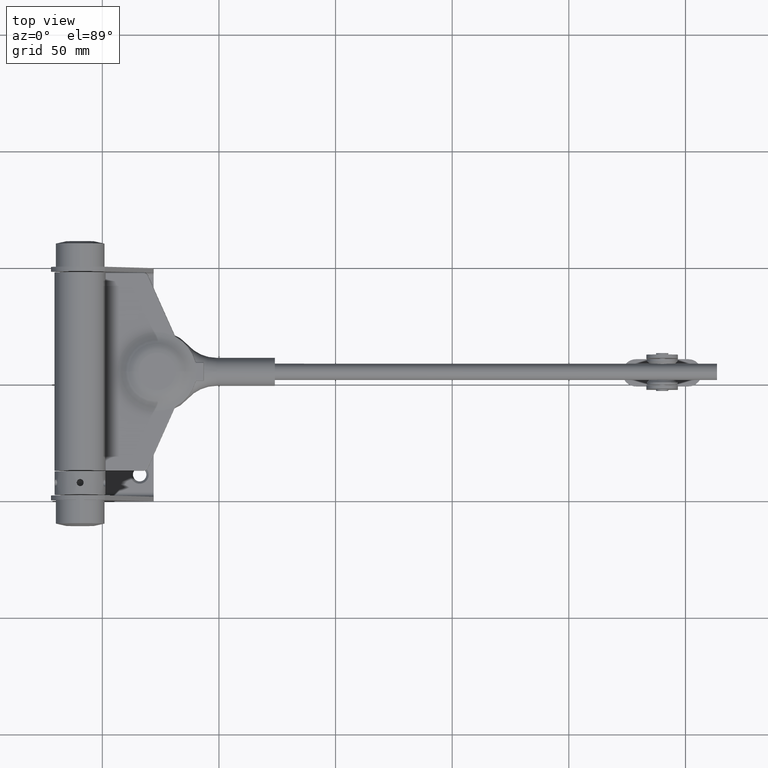
[diagram: clean part render]
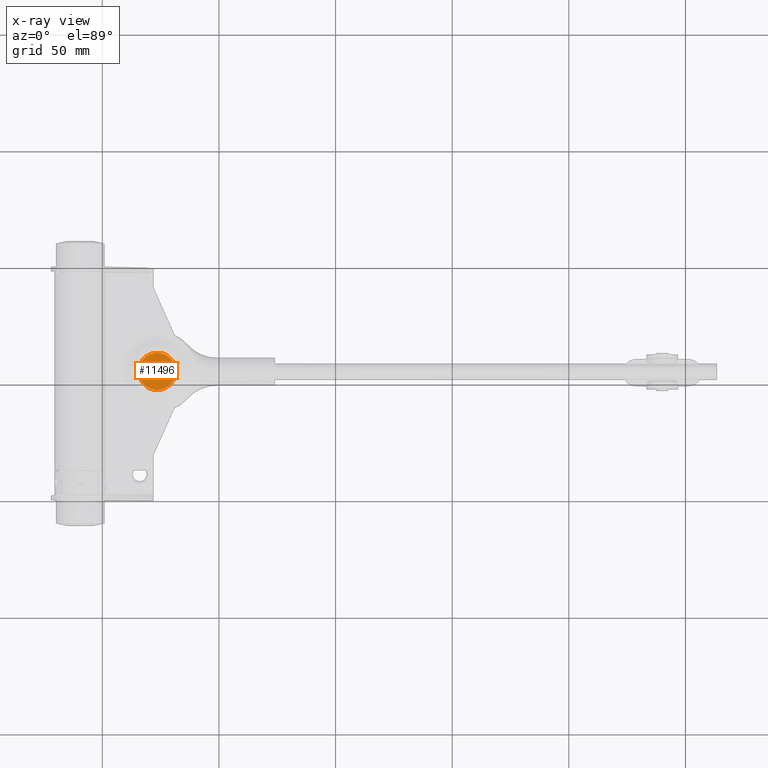
[diagram: x-ray — body ghosted, one internal face saturated and labeled with its STEP entity id]
A machine part, top view, then the same camera in x-ray: the body is ghosted and one INTERNAL B-rep face — a face not visible from any outside direction — is saturated and labeled: STEP entity #11496.
In plain terms, the highlighted planar face has unit normal (0, -0, -1).
Its self-contained STEP definition (entity closure, byte-faithful):
#19 = CARTESIAN_POINT ( 'NONE',  ( -1.999999999999999112, 0.000000000000000000, 32.99999999999999289 ) ) ;
#467 = VERTEX_POINT ( 'NONE', #3411 ) ;
#1975 = DIRECTION ( 'NONE',  ( 0.000000000000000000, 0.000000000000000000, -1.000000000000000000 ) ) ;
#3007 = PLANE ( 'NONE',  #21716 ) ;
#3411 = CARTESIAN_POINT ( 'NONE',  ( -1.999999999999999112, 1.163414459189985682E-15, 40.99999999999999289 ) ) ;
#3971 = AXIS2_PLACEMENT_3D ( 'NONE', #7720, #20013, #1975 ) ;
#7720 = CARTESIAN_POINT ( 'NONE',  ( -1.999999999999999112, 0.000000000000000000, 32.99999999999999289 ) ) ;
#9806 = FACE_OUTER_BOUND ( 'NONE', #14072, .T. ) ;
#11057 = CARTESIAN_POINT ( 'NONE',  ( -1.999999999999999556, 0.000000000000000000, 32.99999999999999289 ) ) ;
#11496 = ADVANCED_FACE ( 'NONE', ( #9806 ), #3007, .T. ) ;
#14072 = EDGE_LOOP ( 'NONE', ( #17922, #17964 ) ) ;
#14319 = DIRECTION ( 'NONE',  ( 0.000000000000000000, 0.000000000000000000, -1.000000000000000000 ) ) ;
#15019 = CIRCLE ( 'NONE', #3971, 8.000000000000000000 ) ;
#17055 = DIRECTION ( 'NONE',  ( -0.000000000000000000, 0.000000000000000000, -1.000000000000000000 ) ) ;
#17399 = VERTEX_POINT ( 'NONE', #20770 ) ;
#17922 = ORIENTED_EDGE ( 'NONE', *, *, #19166, .T. ) ;
#17964 = ORIENTED_EDGE ( 'NONE', *, *, #22080, .T. ) ;
#18157 = AXIS2_PLACEMENT_3D ( 'NONE', #19, #18389, #14319 ) ;
#18389 = DIRECTION ( 'NONE',  ( 1.000000000000000000, -0.000000000000000000, -0.000000000000000000 ) ) ;
#19166 = EDGE_CURVE ( 'NONE', #17399, #467, #21127, .T. ) ;
#19258 = DIRECTION ( 'NONE',  ( 1.000000000000000000, 0.000000000000000000, -0.000000000000000000 ) ) ;
#20013 = DIRECTION ( 'NONE',  ( 1.000000000000000000, -0.000000000000000000, -0.000000000000000000 ) ) ;
#20770 = CARTESIAN_POINT ( 'NONE',  ( -1.999999999999999112, 0.000000000000000000, 24.99999999999999289 ) ) ;
#21127 = CIRCLE ( 'NONE', #18157, 8.000000000000000000 ) ;
#21716 = AXIS2_PLACEMENT_3D ( 'NONE', #11057, #19258, #17055 ) ;
#22080 = EDGE_CURVE ( 'NONE', #467, #17399, #15019, .T. ) ;